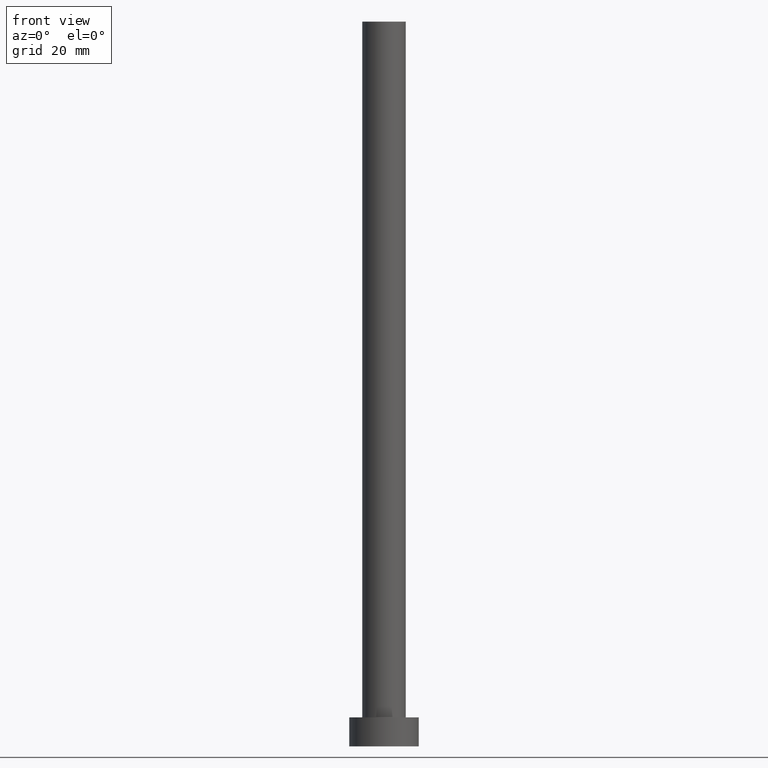
[diagram: clean part render]
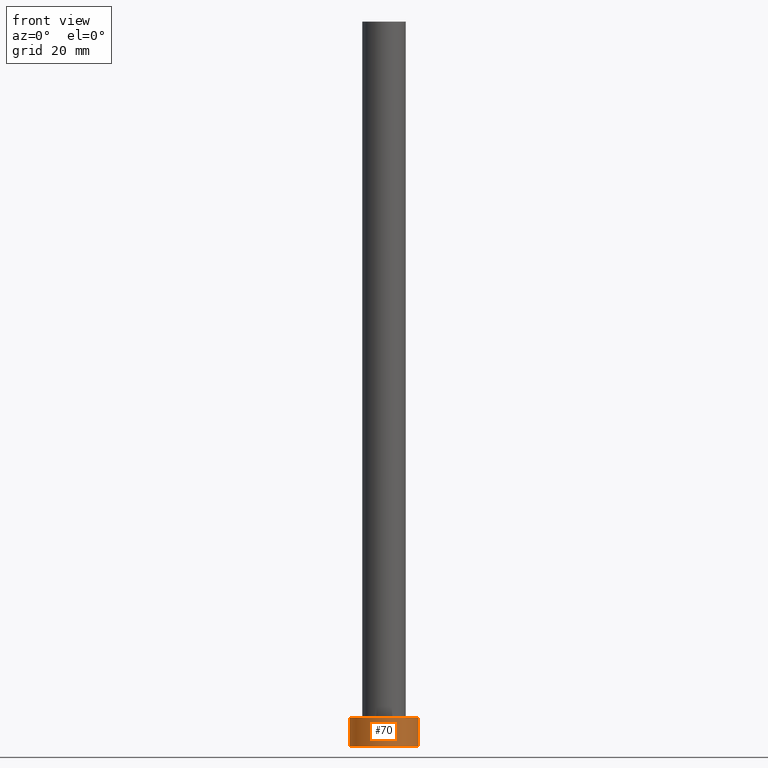
[diagram: same view with one face highlighted and labeled with its STEP entity id]
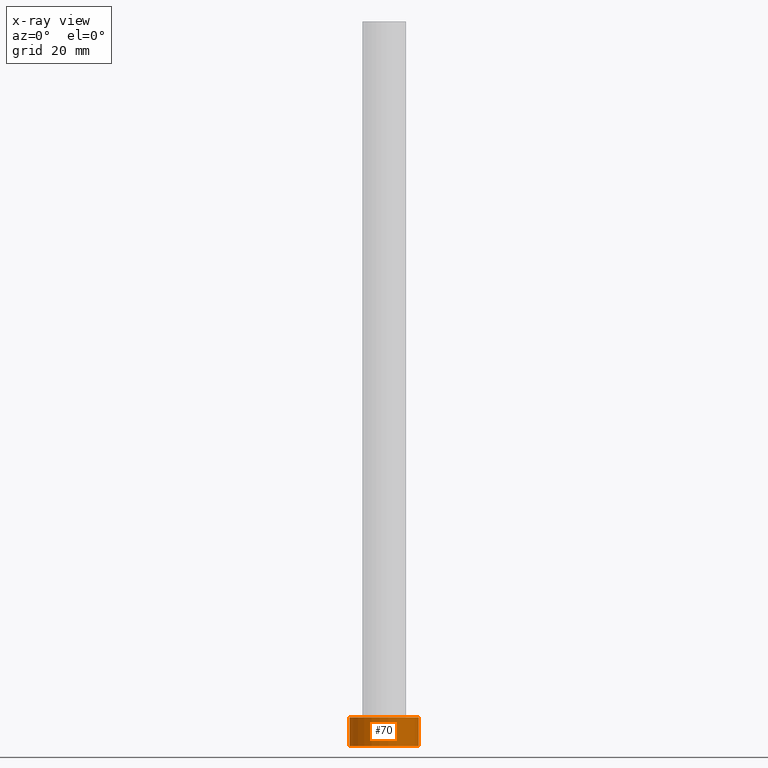
[diagram: x-ray of the same camera — body ghosted, the highlighted face saturated]
A machine part, front view. The second image highlights one B-rep face of the part: STEP entity #70.
The next image is the same camera in x-ray: the body ghosted, the highlighted face saturated — about 0% of this face is hidden behind the body in this view.
In plain terms, the highlighted cylindrical surface (edge-blend (fillet) strip) has radius 6 mm, axis along (-0, -0, -1).
Its self-contained STEP definition (entity closure, byte-faithful):
#13 = CARTESIAN_POINT ( 'NONE',  ( -6.000000000000000888, 0.000000000000000000, 5.000000000000000000 ) ) ;
#16 = CARTESIAN_POINT ( 'NONE',  ( -6.000000000000000888, 0.000000000000000000, 5.000000000000000000 ) ) ;
#17 = EDGE_CURVE ( 'NONE', #238, #192, #171, .T. ) ;
#21 = ORIENTED_EDGE ( 'NONE', *, *, #17, .T. ) ;
#22 = ORIENTED_EDGE ( 'NONE', *, *, #226, .F. ) ;
#33 = DIRECTION ( 'NONE',  ( -0.000000000000000000, -0.000000000000000000, -1.000000000000000000 ) ) ;
#38 = AXIS2_PLACEMENT_3D ( 'NONE', #183, #123, #179 ) ;
#46 = VERTEX_POINT ( 'NONE', #160 ) ;
#56 = AXIS2_PLACEMENT_3D ( 'NONE', #115, #96, #59 ) ;
#59 = DIRECTION ( 'NONE',  ( 1.000000000000000000, 0.000000000000000000, 0.000000000000000000 ) ) ;
#62 = CARTESIAN_POINT ( 'NONE',  ( -6.000000000000000888, 0.000000000000000000, 0.000000000000000000 ) ) ;
#64 = VERTEX_POINT ( 'NONE', #13 ) ;
#70 = ADVANCED_FACE ( 'NONE', ( #76 ), #78, .T. ) ;
#76 = FACE_OUTER_BOUND ( 'NONE', #83, .T. ) ;
#78 = CYLINDRICAL_SURFACE ( 'NONE', #38, 6.000000000000000888 ) ;
#83 = EDGE_LOOP ( 'NONE', ( #22, #111, #252, #21 ) ) ;
#90 = EDGE_CURVE ( 'NONE', #64, #238, #225, .T. ) ;
#96 = DIRECTION ( 'NONE',  ( 0.000000000000000000, 0.000000000000000000, 1.000000000000000000 ) ) ;
#104 = VECTOR ( 'NONE', #33, 1000.000000000000000 ) ;
#111 = ORIENTED_EDGE ( 'NONE', *, *, #237, .F. ) ;
#115 = CARTESIAN_POINT ( 'NONE',  ( 0.000000000000000000, 0.000000000000000000, 0.000000000000000000 ) ) ;
#117 = CARTESIAN_POINT ( 'NONE',  ( 6.000000000000000888, 7.347880794884120722E-16, 0.000000000000000000 ) ) ;
#123 = DIRECTION ( 'NONE',  ( -0.000000000000000000, -0.000000000000000000, -1.000000000000000000 ) ) ;
#142 = DIRECTION ( 'NONE',  ( -0.000000000000000000, -0.000000000000000000, -1.000000000000000000 ) ) ;
#151 = LINE ( 'NONE', #234, #104 ) ;
#160 = CARTESIAN_POINT ( 'NONE',  ( 6.000000000000000888, 7.347880794884120722E-16, 5.000000000000000000 ) ) ;
#162 = AXIS2_PLACEMENT_3D ( 'NONE', #166, #249, #201 ) ;
#166 = CARTESIAN_POINT ( 'NONE',  ( 0.000000000000000000, 0.000000000000000000, 5.000000000000000000 ) ) ;
#171 = CIRCLE ( 'NONE', #56, 6.000000000000000888 ) ;
#179 = DIRECTION ( 'NONE',  ( -1.000000000000000000, 0.000000000000000000, 0.000000000000000000 ) ) ;
#180 = VECTOR ( 'NONE', #142, 1000.000000000000000 ) ;
#183 = CARTESIAN_POINT ( 'NONE',  ( 0.000000000000000000, 0.000000000000000000, 5.000000000000000000 ) ) ;
#192 = VERTEX_POINT ( 'NONE', #117 ) ;
#193 = CIRCLE ( 'NONE', #162, 6.000000000000000888 ) ;
#201 = DIRECTION ( 'NONE',  ( 1.000000000000000000, 0.000000000000000000, 0.000000000000000000 ) ) ;
#225 = LINE ( 'NONE', #16, #180 ) ;
#226 = EDGE_CURVE ( 'NONE', #46, #192, #151, .T. ) ;
#234 = CARTESIAN_POINT ( 'NONE',  ( 6.000000000000000888, 7.347880794884120722E-16, 5.000000000000000000 ) ) ;
#237 = EDGE_CURVE ( 'NONE', #64, #46, #193, .T. ) ;
#238 = VERTEX_POINT ( 'NONE', #62 ) ;
#249 = DIRECTION ( 'NONE',  ( 0.000000000000000000, 0.000000000000000000, 1.000000000000000000 ) ) ;
#252 = ORIENTED_EDGE ( 'NONE', *, *, #90, .T. ) ;